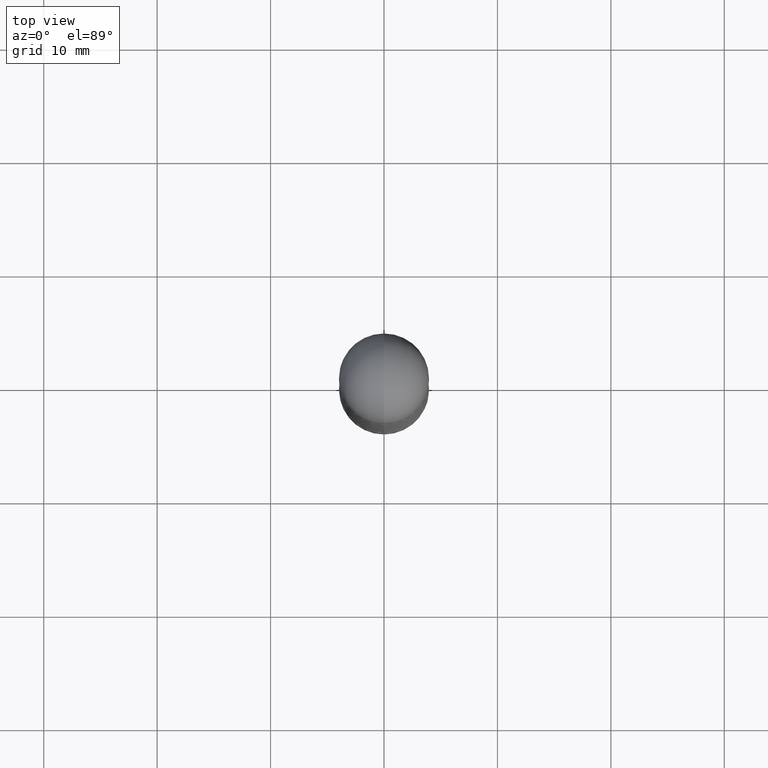
[diagram: clean part render]
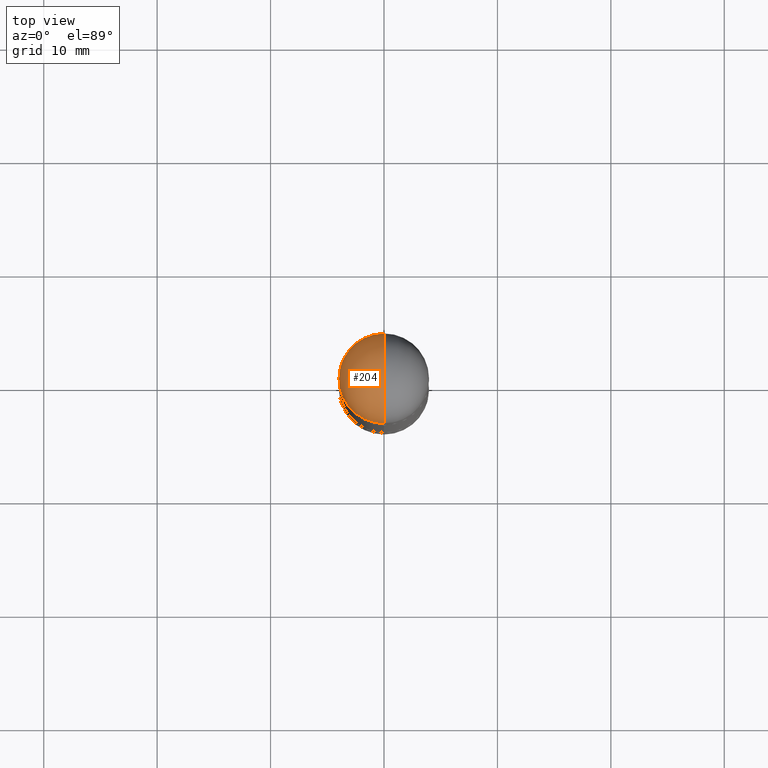
[diagram: same view with one face highlighted and labeled with its STEP entity id]
A machine part, top view. The second image highlights one B-rep face of the part: STEP entity #204.
In plain terms, the highlighted spherical surface has radius 3.9688 mm.
Its self-contained STEP definition (entity closure, byte-faithful):
#26 = CARTESIAN_POINT ( 'NONE',  ( 5.400447736582527652E-29, -8.657341756053672891E-15, -0.1562500000000005551 ) ) ;
#27 = EDGE_CURVE ( 'NONE', #489, #440, #34, .T. ) ;
#31 = CIRCLE ( 'NONE', #420, 0.1562500000000000000 ) ;
#34 = CIRCLE ( 'NONE', #729, 0.1562500000000002498 ) ;
#84 = CARTESIAN_POINT ( 'NONE',  ( 5.731567514496413899E-29, -8.183159387913622595E-15, -0.1562500000000005551 ) ) ;
#124 = SPHERICAL_SURFACE ( 'NONE', #597, 0.1562500000000002498 ) ;
#155 = DIRECTION ( 'NONE',  ( 1.000000000000000000, -6.982962677686262766E-15, 0.000000000000000000 ) ) ;
#162 = DIRECTION ( 'NONE',  ( 1.000000000000000000, -6.860497997771530774E-15, -4.840798879624142912E-29 ) ) ;
#167 = CARTESIAN_POINT ( 'NONE',  ( 5.789233224183170584E-29, -9.193318162129576161E-15, -3.073328992872296367E-16 ) ) ;
#204 = ADVANCED_FACE ( 'NONE', ( #808 ), #124, .T. ) ;
#213 = CARTESIAN_POINT ( 'NONE',  ( 5.400447736582527652E-29, -8.657341756053672891E-15, -0.1562500000000005551 ) ) ;
#216 = DIRECTION ( 'NONE',  ( 6.982962677686265922E-15, 1.000000000000000000, 3.496765431890251398E-15 ) ) ;
#223 = EDGE_CURVE ( 'NONE', #694, #816, #719, .T. ) ;
#249 = EDGE_CURVE ( 'NONE', #489, #816, #354, .T. ) ;
#277 = ORIENTED_EDGE ( 'NONE', *, *, #737, .T. ) ;
#283 = DIRECTION ( 'NONE',  ( 6.860497997771530774E-15, 1.000000000000000000, 0.000000000000000000 ) ) ;
#325 = DIRECTION ( 'NONE',  ( 2.445468806185136597E-29, -3.491481338843145583E-15, 1.000000000000000000 ) ) ;
#340 = DIRECTION ( 'NONE',  ( 1.000000000000000000, -6.982962677686265922E-15, -4.883557194083112340E-29 ) ) ;
#354 = CIRCLE ( 'NONE', #811, 0.1562500000000002498 ) ;
#420 = AXIS2_PLACEMENT_3D ( 'NONE', #84, #325, #155 ) ;
#440 = VERTEX_POINT ( 'NONE', #490 ) ;
#469 = DIRECTION ( 'NONE',  ( 1.000000000000000000, -6.982962677686262766E-15, 0.000000000000000000 ) ) ;
#489 = VERTEX_POINT ( 'NONE', #167 ) ;
#490 = CARTESIAN_POINT ( 'NONE',  ( 1.091087918388535577E-15, 0.1562499999999916733, -0.1562500000000000000 ) ) ;
#502 = DIRECTION ( 'NONE',  ( -1.000000000000000000, 6.982962677686265922E-15, 4.883557194083112340E-29 ) ) ;
#529 = CARTESIAN_POINT ( 'NONE',  ( 5.731567514496413899E-29, -8.183159387913622595E-15, -0.1562500000000005551 ) ) ;
#597 = AXIS2_PLACEMENT_3D ( 'NONE', #213, #340, #216 ) ;
#626 = DIRECTION ( 'NONE',  ( -6.982962677686265922E-15, -1.000000000000000000, 0.000000000000000000 ) ) ;
#647 = DIRECTION ( 'NONE',  ( 2.445468806185136597E-29, -3.491481338843145583E-15, 1.000000000000000000 ) ) ;
#653 = CARTESIAN_POINT ( 'NONE',  ( -1.071952812151746981E-15, -0.1562500000000085487, -0.1562500000000011102 ) ) ;
#686 = CARTESIAN_POINT ( 'NONE',  ( 5.400447736582527652E-29, -8.657341756053672891E-15, -0.1562500000000005551 ) ) ;
#694 = VERTEX_POINT ( 'NONE', #776 ) ;
#704 = AXIS2_PLACEMENT_3D ( 'NONE', #529, #647, #469 ) ;
#706 = ORIENTED_EDGE ( 'NONE', *, *, #27, .T. ) ;
#719 = CIRCLE ( 'NONE', #704, 0.1562500000000000000 ) ;
#723 = ORIENTED_EDGE ( 'NONE', *, *, #223, .T. ) ;
#729 = AXIS2_PLACEMENT_3D ( 'NONE', #686, #502, #626 ) ;
#737 = EDGE_CURVE ( 'NONE', #440, #694, #31, .T. ) ;
#742 = EDGE_LOOP ( 'NONE', ( #753, #706, #277, #723 ) ) ;
#753 = ORIENTED_EDGE ( 'NONE', *, *, #249, .F. ) ;
#776 = CARTESIAN_POINT ( 'NONE',  ( -0.1562500000000000000, -6.511108220648156257E-15, -0.1562500000000005551 ) ) ;
#808 = FACE_OUTER_BOUND ( 'NONE', #742, .T. ) ;
#811 = AXIS2_PLACEMENT_3D ( 'NONE', #26, #162, #283 ) ;
#816 = VERTEX_POINT ( 'NONE', #653 ) ;